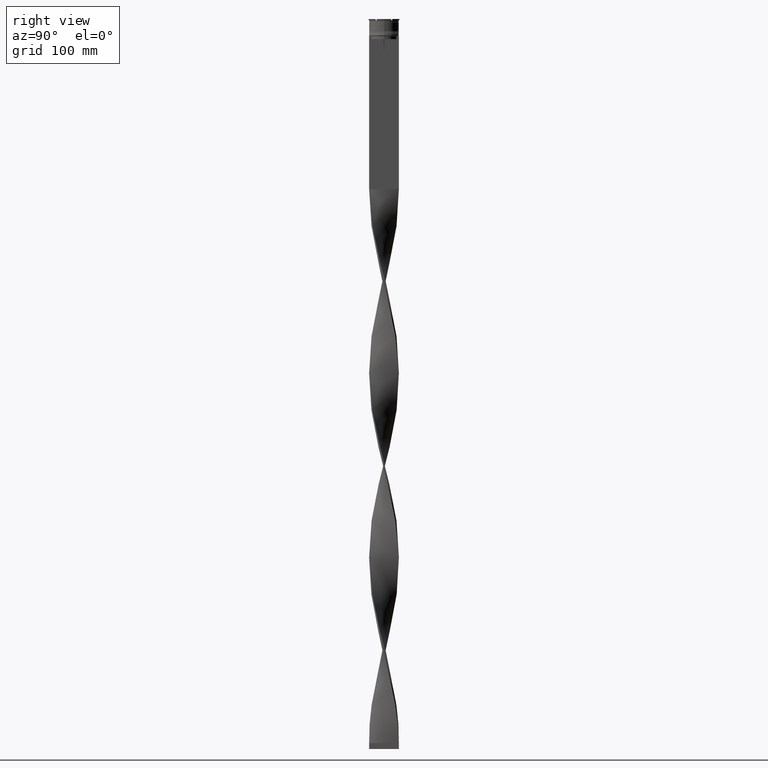
[diagram: clean part render]
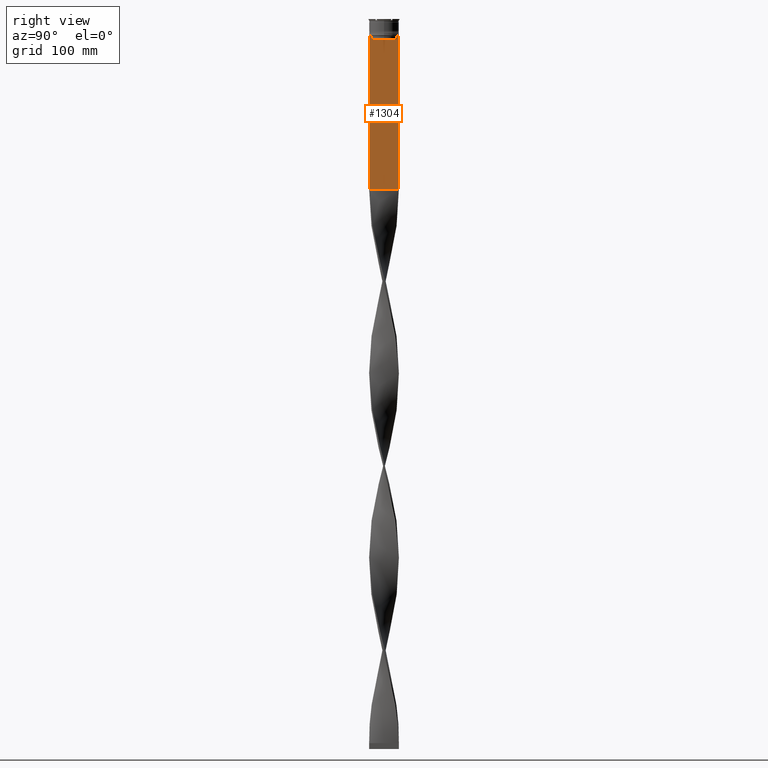
[diagram: same view with one face highlighted and labeled with its STEP entity id]
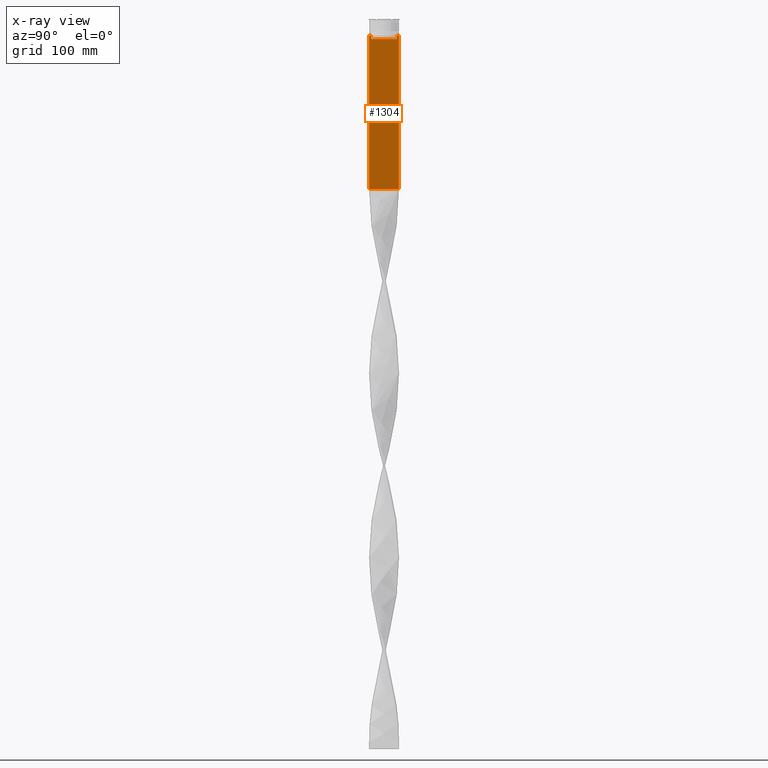
[diagram: x-ray of the same camera — body ghosted, the highlighted face saturated]
A machine part, right view. The second image highlights one B-rep face of the part: STEP entity #1304.
The next image is the same camera in x-ray: the body ghosted, the highlighted face saturated — about 0% of this face is hidden behind the body in this view.
In plain terms, the highlighted planar face has unit normal (-1, 0, 0).
Its self-contained STEP definition (entity closure, byte-faithful):
#87 = B_SPLINE_CURVE_WITH_KNOTS ( 'NONE', 3,
 ( #1459, #1142, #2977, #4124 ),
 .UNSPECIFIED., .F., .F.,
 ( 4, 4 ),
 ( 0.05009718908159448147, 0.05081156920313959630 ),
 .UNSPECIFIED. ) ;
#114 = VECTOR ( 'NONE', #930, 1000.000000000000000 ) ;
#180 = VECTOR ( 'NONE', #3320, 1000.000000000000000 ) ;
#286 = LINE ( 'NONE', #4783, #180 ) ;
#297 = DIRECTION ( 'NONE',  ( 0.000000000000000000, 1.000000000000000000, 0.000000000000000000 ) ) ;
#324 = DIRECTION ( 'NONE',  ( 0.000000000000000000, 0.000000000000000000, -1.000000000000000000 ) ) ;
#359 = VERTEX_POINT ( 'NONE', #3727 ) ;
#369 = EDGE_CURVE ( 'NONE', #4083, #1765, #4072, .T. ) ;
#476 = ORIENTED_EDGE ( 'NONE', *, *, #2513, .T. ) ;
#575 = PLANE ( 'NONE',  #3256 ) ;
#602 = LINE ( 'NONE', #2120, #114 ) ;
#620 = DIRECTION ( 'NONE',  ( -1.000000000000000000, 0.000000000000000000, 0.000000000000000000 ) ) ;
#621 = DIRECTION ( 'NONE',  ( 0.000000000000000000, -1.000000000000000000, 0.000000000000000000 ) ) ;
#639 = EDGE_CURVE ( 'NONE', #1403, #4083, #2691, .T. ) ;
#643 = CARTESIAN_POINT ( 'NONE',  ( 0.7500000000000002220, -10.87416663473574019, -17.00000000000000000 ) ) ;
#645 = VECTOR ( 'NONE', #2406, 1000.000000000000000 ) ;
#704 = DIRECTION ( 'NONE',  ( 0.000000000000000000, 0.000000000000000000, -1.000000000000000000 ) ) ;
#760 = CARTESIAN_POINT ( 'NONE',  ( 0.7500000000000002220, -12.50000000000000000, -143.0000000000000284 ) ) ;
#778 = CARTESIAN_POINT ( 'NONE',  ( 0.7500000000000002220, 12.50000000000000000, -143.0000000000000284 ) ) ;
#899 = CARTESIAN_POINT ( 'NONE',  ( 0.7500000000000002220, -12.50000000000000000, -14.00000000000000178 ) ) ;
#930 = DIRECTION ( 'NONE',  ( 0.000000000000000000, -1.000000000000000000, 0.000000000000000000 ) ) ;
#983 = VECTOR ( 'NONE', #704, 1000.000000000000000 ) ;
#1089 = DIRECTION ( 'NONE',  ( 0.000000000000000000, -1.000000000000000000, 0.000000000000000000 ) ) ;
#1123 = EDGE_CURVE ( 'NONE', #359, #3779, #2019, .T. ) ;
#1127 = VERTEX_POINT ( 'NONE', #3666 ) ;
#1142 = CARTESIAN_POINT ( 'NONE',  ( 0.7500000000000002220, -11.04122051801870441, -14.33334204001847567 ) ) ;
#1183 = EDGE_CURVE ( 'NONE', #1866, #359, #286, .T. ) ;
#1304 = ADVANCED_FACE ( 'NONE', ( #2877 ), #575, .F. ) ;
#1401 = CARTESIAN_POINT ( 'NONE',  ( 0.7500000000000002220, -12.50000000000000000, -14.00000000000000178 ) ) ;
#1403 = VERTEX_POINT ( 'NONE', #4404 ) ;
#1404 = LINE ( 'NONE', #4781, #983 ) ;
#1459 = CARTESIAN_POINT ( 'NONE',  ( 0.7500000000000002220, -10.87416663473574197, -14.50000000000000000 ) ) ;
#1518 = VECTOR ( 'NONE', #621, 1000.000000000000000 ) ;
#1597 = VECTOR ( 'NONE', #3653, 1000.000000000000000 ) ;
#1685 = VERTEX_POINT ( 'NONE', #2517 ) ;
#1765 = VERTEX_POINT ( 'NONE', #4667 ) ;
#1807 = ORIENTED_EDGE ( 'NONE', *, *, #1123, .T. ) ;
#1825 = CARTESIAN_POINT ( 'NONE',  ( 0.7500000000000002220, 10.87416663473574197, -14.50000000000000000 ) ) ;
#1866 = VERTEX_POINT ( 'NONE', #2051 ) ;
#1961 = CARTESIAN_POINT ( 'NONE',  ( 0.7500000000000002220, 11.37530219378809093, -14.00000000000000178 ) ) ;
#2019 = LINE ( 'NONE', #899, #645 ) ;
#2051 = CARTESIAN_POINT ( 'NONE',  ( 0.7500000000000002220, -11.37530219378809093, -14.00000000000000178 ) ) ;
#2120 = CARTESIAN_POINT ( 'NONE',  ( 0.7500000000000002220, 10.90000000000000213, -17.00000000000000000 ) ) ;
#2137 = CARTESIAN_POINT ( 'NONE',  ( 0.7500000000000002220, -12.50000000000000000, -143.0000000000000284 ) ) ;
#2166 = LINE ( 'NONE', #2137, #3799 ) ;
#2189 = VERTEX_POINT ( 'NONE', #760 ) ;
#2220 = ORIENTED_EDGE ( 'NONE', *, *, #2886, .T. ) ;
#2406 = DIRECTION ( 'NONE',  ( 0.000000000000000000, -1.000000000000000000, 0.000000000000000000 ) ) ;
#2455 = EDGE_CURVE ( 'NONE', #2189, #4452, #2166, .T. ) ;
#2513 = EDGE_CURVE ( 'NONE', #4663, #1127, #2893, .T. ) ;
#2517 = CARTESIAN_POINT ( 'NONE',  ( 0.7500000000000002220, 12.37729776647553059, -14.00000000000000178 ) ) ;
#2555 = VECTOR ( 'NONE', #4293, 1000.000000000000000 ) ;
#2691 = B_SPLINE_CURVE_WITH_KNOTS ( 'NONE', 3,
 ( #1961, #4597, #3821, #3479 ),
 .UNSPECIFIED., .F., .F.,
 ( 4, 4 ),
 ( 0.01936090553552769281, 0.02006881572333104116 ),
 .UNSPECIFIED. ) ;
#2710 = ORIENTED_EDGE ( 'NONE', *, *, #3120, .T. ) ;
#2778 = CARTESIAN_POINT ( 'NONE',  ( 0.7500000000000002220, -12.50000000000000000, -14.00000000000000178 ) ) ;
#2874 = VECTOR ( 'NONE', #1089, 1000.000000000000000 ) ;
#2877 = FACE_OUTER_BOUND ( 'NONE', #3274, .T. ) ;
#2886 = EDGE_CURVE ( 'NONE', #1685, #1403, #3951, .T. ) ;
#2893 = LINE ( 'NONE', #4066, #1597 ) ;
#2977 = CARTESIAN_POINT ( 'NONE',  ( 0.7500000000000002220, -11.20826532207830439, -14.16667499063191826 ) ) ;
#3120 = EDGE_CURVE ( 'NONE', #4170, #1685, #4437, .T. ) ;
#3256 = AXIS2_PLACEMENT_3D ( 'NONE', #4753, #620, #3589 ) ;
#3274 = EDGE_LOOP ( 'NONE', ( #2220, #3949, #4401, #3936, #476, #3368, #3789, #1807, #4584, #3652, #4036, #2710 ) ) ;
#3320 = DIRECTION ( 'NONE',  ( 0.000000000000000000, -1.000000000000000000, 0.000000000000000000 ) ) ;
#3368 = ORIENTED_EDGE ( 'NONE', *, *, #4060, .T. ) ;
#3479 = CARTESIAN_POINT ( 'NONE',  ( 0.7500000000000002220, 10.87416663473574197, -14.50000000000000000 ) ) ;
#3589 = DIRECTION ( 'NONE',  ( 0.000000000000000000, 0.000000000000000000, 1.000000000000000000 ) ) ;
#3652 = ORIENTED_EDGE ( 'NONE', *, *, #2455, .T. ) ;
#3653 = DIRECTION ( 'NONE',  ( -0.000000000000000000, -0.000000000000000000, 1.000000000000000000 ) ) ;
#3666 = CARTESIAN_POINT ( 'NONE',  ( 0.7500000000000002220, -10.87416663473574197, -14.50000000000000000 ) ) ;
#3727 = CARTESIAN_POINT ( 'NONE',  ( 0.7500000000000002220, -12.37729776647553059, -14.00000000000000178 ) ) ;
#3748 = EDGE_CURVE ( 'NONE', #1765, #4663, #602, .T. ) ;
#3779 = VERTEX_POINT ( 'NONE', #4341 ) ;
#3789 = ORIENTED_EDGE ( 'NONE', *, *, #1183, .T. ) ;
#3799 = VECTOR ( 'NONE', #297, 1000.000000000000000 ) ;
#3821 = CARTESIAN_POINT ( 'NONE',  ( 0.7500000000000002220, 11.04122051153452055, -14.33334204648729404 ) ) ;
#3936 = ORIENTED_EDGE ( 'NONE', *, *, #3748, .T. ) ;
#3949 = ORIENTED_EDGE ( 'NONE', *, *, #639, .T. ) ;
#3951 = LINE ( 'NONE', #2778, #1518 ) ;
#3972 = CARTESIAN_POINT ( 'NONE',  ( 0.7500000000000002220, -12.50000000000000000, 11.04495957273638673 ) ) ;
#4036 = ORIENTED_EDGE ( 'NONE', *, *, #4097, .F. ) ;
#4060 = EDGE_CURVE ( 'NONE', #1127, #1866, #87, .T. ) ;
#4066 = CARTESIAN_POINT ( 'NONE',  ( 0.7500000000000002220, -10.87416663473574197, 0.000000000000000000 ) ) ;
#4072 = LINE ( 'NONE', #4383, #4726 ) ;
#4083 = VERTEX_POINT ( 'NONE', #1825 ) ;
#4097 = EDGE_CURVE ( 'NONE', #4170, #4452, #1404, .T. ) ;
#4124 = CARTESIAN_POINT ( 'NONE',  ( 0.7500000000000002220, -11.37530219378809093, -14.00000000000000178 ) ) ;
#4170 = VERTEX_POINT ( 'NONE', #4411 ) ;
#4293 = DIRECTION ( 'NONE',  ( 0.000000000000000000, 0.000000000000000000, -1.000000000000000000 ) ) ;
#4341 = CARTESIAN_POINT ( 'NONE',  ( 0.7500000000000002220, -12.50000000000000000, -14.00000000000000178 ) ) ;
#4360 = LINE ( 'NONE', #3972, #2555 ) ;
#4383 = CARTESIAN_POINT ( 'NONE',  ( 0.7500000000000002220, 10.87416663473574197, 0.000000000000000000 ) ) ;
#4401 = ORIENTED_EDGE ( 'NONE', *, *, #369, .T. ) ;
#4404 = CARTESIAN_POINT ( 'NONE',  ( 0.7500000000000002220, 11.37530219378809093, -14.00000000000000178 ) ) ;
#4411 = CARTESIAN_POINT ( 'NONE',  ( 0.7500000000000002220, 12.50000000000000000, -14.00000000000000178 ) ) ;
#4437 = LINE ( 'NONE', #1401, #2874 ) ;
#4452 = VERTEX_POINT ( 'NONE', #778 ) ;
#4576 = EDGE_CURVE ( 'NONE', #3779, #2189, #4360, .T. ) ;
#4584 = ORIENTED_EDGE ( 'NONE', *, *, #4576, .T. ) ;
#4597 = CARTESIAN_POINT ( 'NONE',  ( 0.7500000000000002220, 11.20826531587977648, -14.16667499681701514 ) ) ;
#4663 = VERTEX_POINT ( 'NONE', #643 ) ;
#4667 = CARTESIAN_POINT ( 'NONE',  ( 0.7500000000000002220, 10.87416663473574019, -17.00000000000000000 ) ) ;
#4726 = VECTOR ( 'NONE', #324, 1000.000000000000000 ) ;
#4753 = CARTESIAN_POINT ( 'NONE',  ( 0.7500000000000002220, -12.50000000000000000, 11.04495957273638673 ) ) ;
#4781 = CARTESIAN_POINT ( 'NONE',  ( 0.7500000000000002220, 12.50000000000000000, 11.04495957273638673 ) ) ;
#4783 = CARTESIAN_POINT ( 'NONE',  ( 0.7500000000000002220, -12.50000000000000000, -14.00000000000000178 ) ) ;